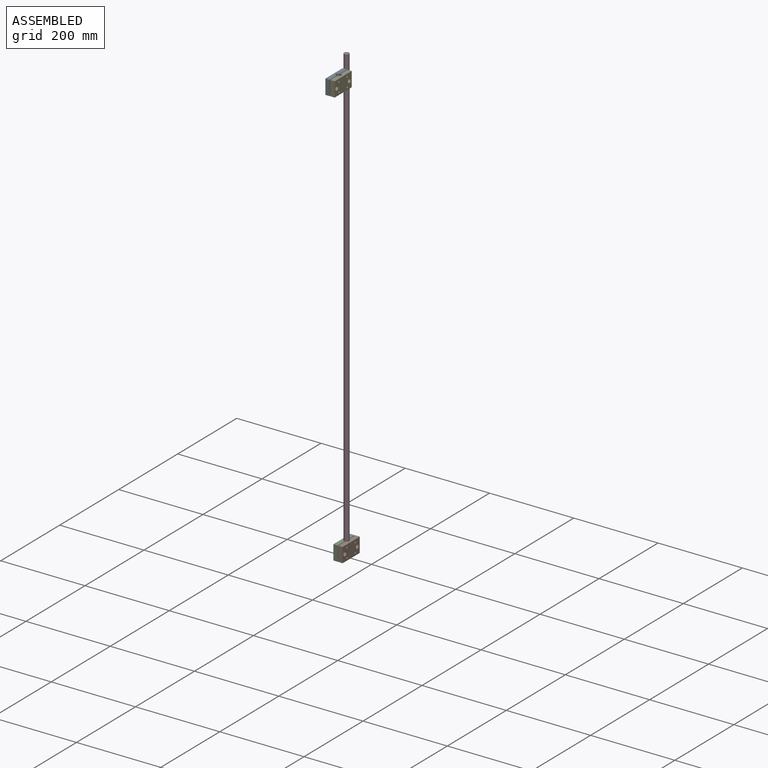
[diagram: assembled view]
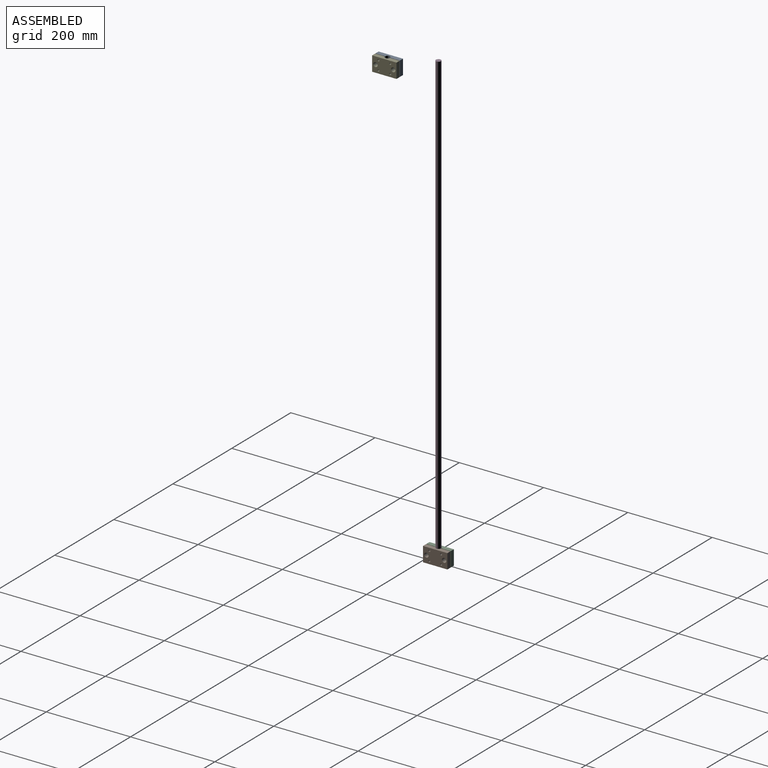
[diagram: assembled view, second angle]
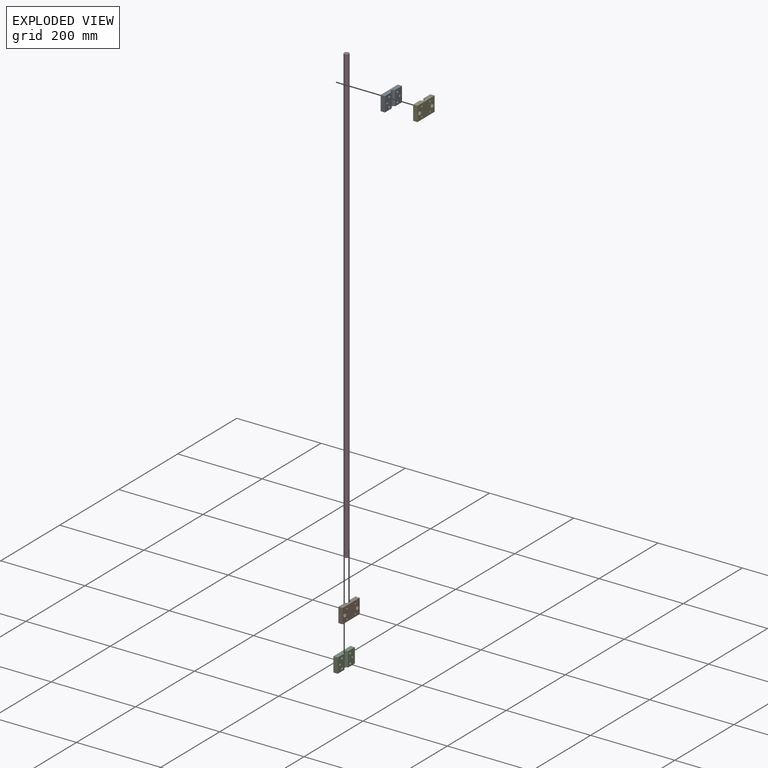
[diagram: exploded view]
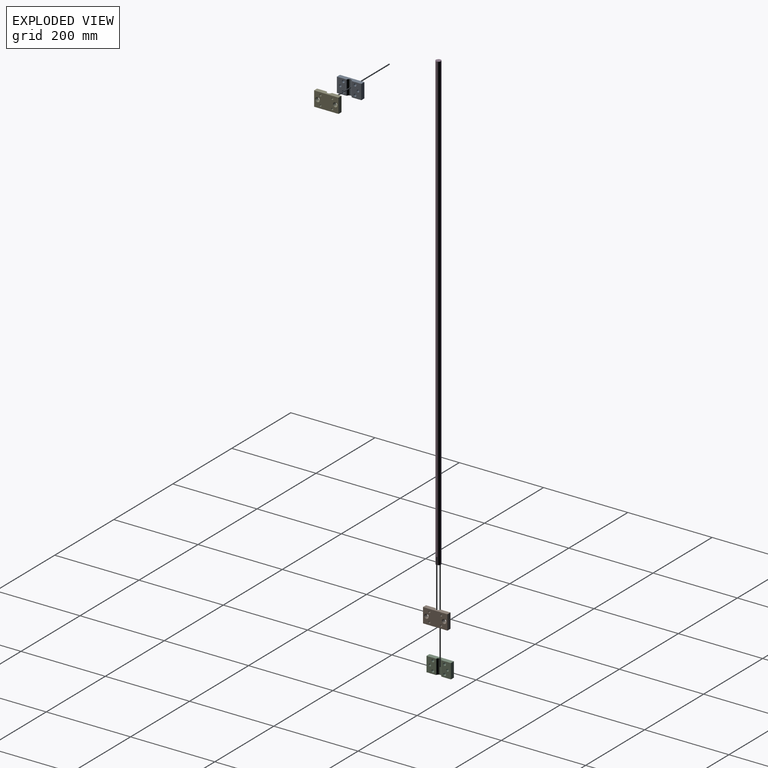
[diagram: exploded view, second angle]
ASSEMBLY  parts=5 mates=2
PART A: 14 faces, bbox 10.3x58x35 mm
  f0: plane 35x22.95mm, normal (1,0,0), area 719mm2, adj f1,f5,f6,f7,f10,f11,f13
  f1: plane 35x10.25mm, normal (0,1,0), area 358.7mm2, adj f0,f2,f6,f7
  f2: plane 58x35mm, normal (-1,0,0), area 1861.7mm2, adj f1,f3,f6,f7,f8,f9,f10,f11
  f3: plane 35x10.25mm, normal (0,-1,0), area 358.7mm2, adj f2,f4,f6,f7
  f4: plane 35x22.95mm, normal (1,0,0), area 719mm2, adj f3,f5,f6,f7,f8,f9,f12
  f5: cylinder r=6.1mm len=35mm, axis (0,0,1), area 618.1mm2, adj f0,f4,f6,f7
  f6: plane 58x10.25mm, normal (0,0,-1), area 545.2mm2, adj f0,f1,f2,f3,f4,f5
  f7: plane 58x10.25mm, normal (0,0,1), area 545.2mm2, adj f0,f1,f2,f3,f4,f5
  f8: cylinder r=3.1mm len=10.25mm, axis (1,0,0), area 199.6mm2, adj f2,f4
  f9: cylinder r=3.1mm len=10.25mm, axis (1,0,0), area 199.6mm2, adj f2,f4
  f10: cylinder r=3.1mm len=10.25mm, axis (1,0,0), area 199.6mm2, adj f0,f2
  f11: cylinder r=3.1mm len=10.25mm, axis (1,0,0), area 199.6mm2, adj f0,f2
  f12: cylinder r=2.75mm len=10.25mm, axis (1,0,0), area 177.1mm2, adj f2,f4
  f13: cylinder r=2.75mm len=10.25mm, axis (1,0,0), area 177.1mm2, adj f0,f2
PART B: 14 faces, bbox 10.3x58x35 mm
  f0: plane 35x10.25mm, normal (0,-1,0), area 358.8mm2, adj f1,f5,f6,f7
  f1: plane 58x35mm, normal (1,0,0), area 1793.2mm2, adj f0,f2,f6,f7,f8,f9,f10,f11
  f2: plane 35x10.25mm, normal (0,1,0), area 358.8mm2, adj f1,f3,f6,f7
  f3: plane 35x22.95mm, normal (-1,0,0), area 684.7mm2, adj f2,f4,f6,f7,f9,f12,f13
  f4: cylinder r=6.1mm len=35mm, axis (0,0,1), area 618.1mm2, adj f3,f5,f6,f7
  f5: plane 35x22.95mm, normal (-1,0,0), area 684.7mm2, adj f0,f4,f6,f7,f8,f10,f11
  f6: plane 58x10.25mm, normal (0,0,-1), area 545.2mm2, adj f0,f1,f2,f3,f4,f5
  f7: plane 58x10.25mm, normal (0,0,1), area 545.2mm2, adj f0,f1,f2,f3,f4,f5
  f8: cylinder r=5.25mm len=10.5mm, axis (1,0,0), area 338.1mm2, adj f1,f5
  f9: cylinder r=5.25mm len=10.5mm, axis (1,0,0), area 338.1mm2, adj f1,f3
  f10: cylinder r=2.25mm len=10.25mm, axis (1,0,0), area 144.9mm2, adj f1,f5
  f11: cylinder r=2.25mm len=10.25mm, axis (1,0,0), area 144.9mm2, adj f1,f5
  f12: cylinder r=2.25mm len=10.25mm, axis (1,0,0), area 144.9mm2, adj f1,f3
  f13: cylinder r=2.25mm len=10.25mm, axis (1,0,0), area 144.9mm2, adj f1,f3
PART C: same geometry as A
PART D: 3 faces, bbox 12x12x1080 mm
  f0: cylinder r=6mm len=1080mm, axis (0,0,1), area 40715mm2, adj f1,f2
  f1: plane 12x12mm, normal (0,0,-1), area 113.1mm2, adj f0
  f2: plane 12x12mm, normal (0,0,1), area 113.1mm2, adj f0
PART E: same geometry as B
PLACE A at identity fixed
PLACE B t=(-44,90,-1045)mm
PLACE C t=(-44,90,-1045)mm
PLACE D at identity fixed
PLACE E at identity fixed
MATE fastened B.f4 <-> D.f0  axis (0,0,1) through (-344,350,-1080)mm
MATE fastened C.f5 <-> D.f0  axis (0,0,-1) through (-344,350,-1080)mm
